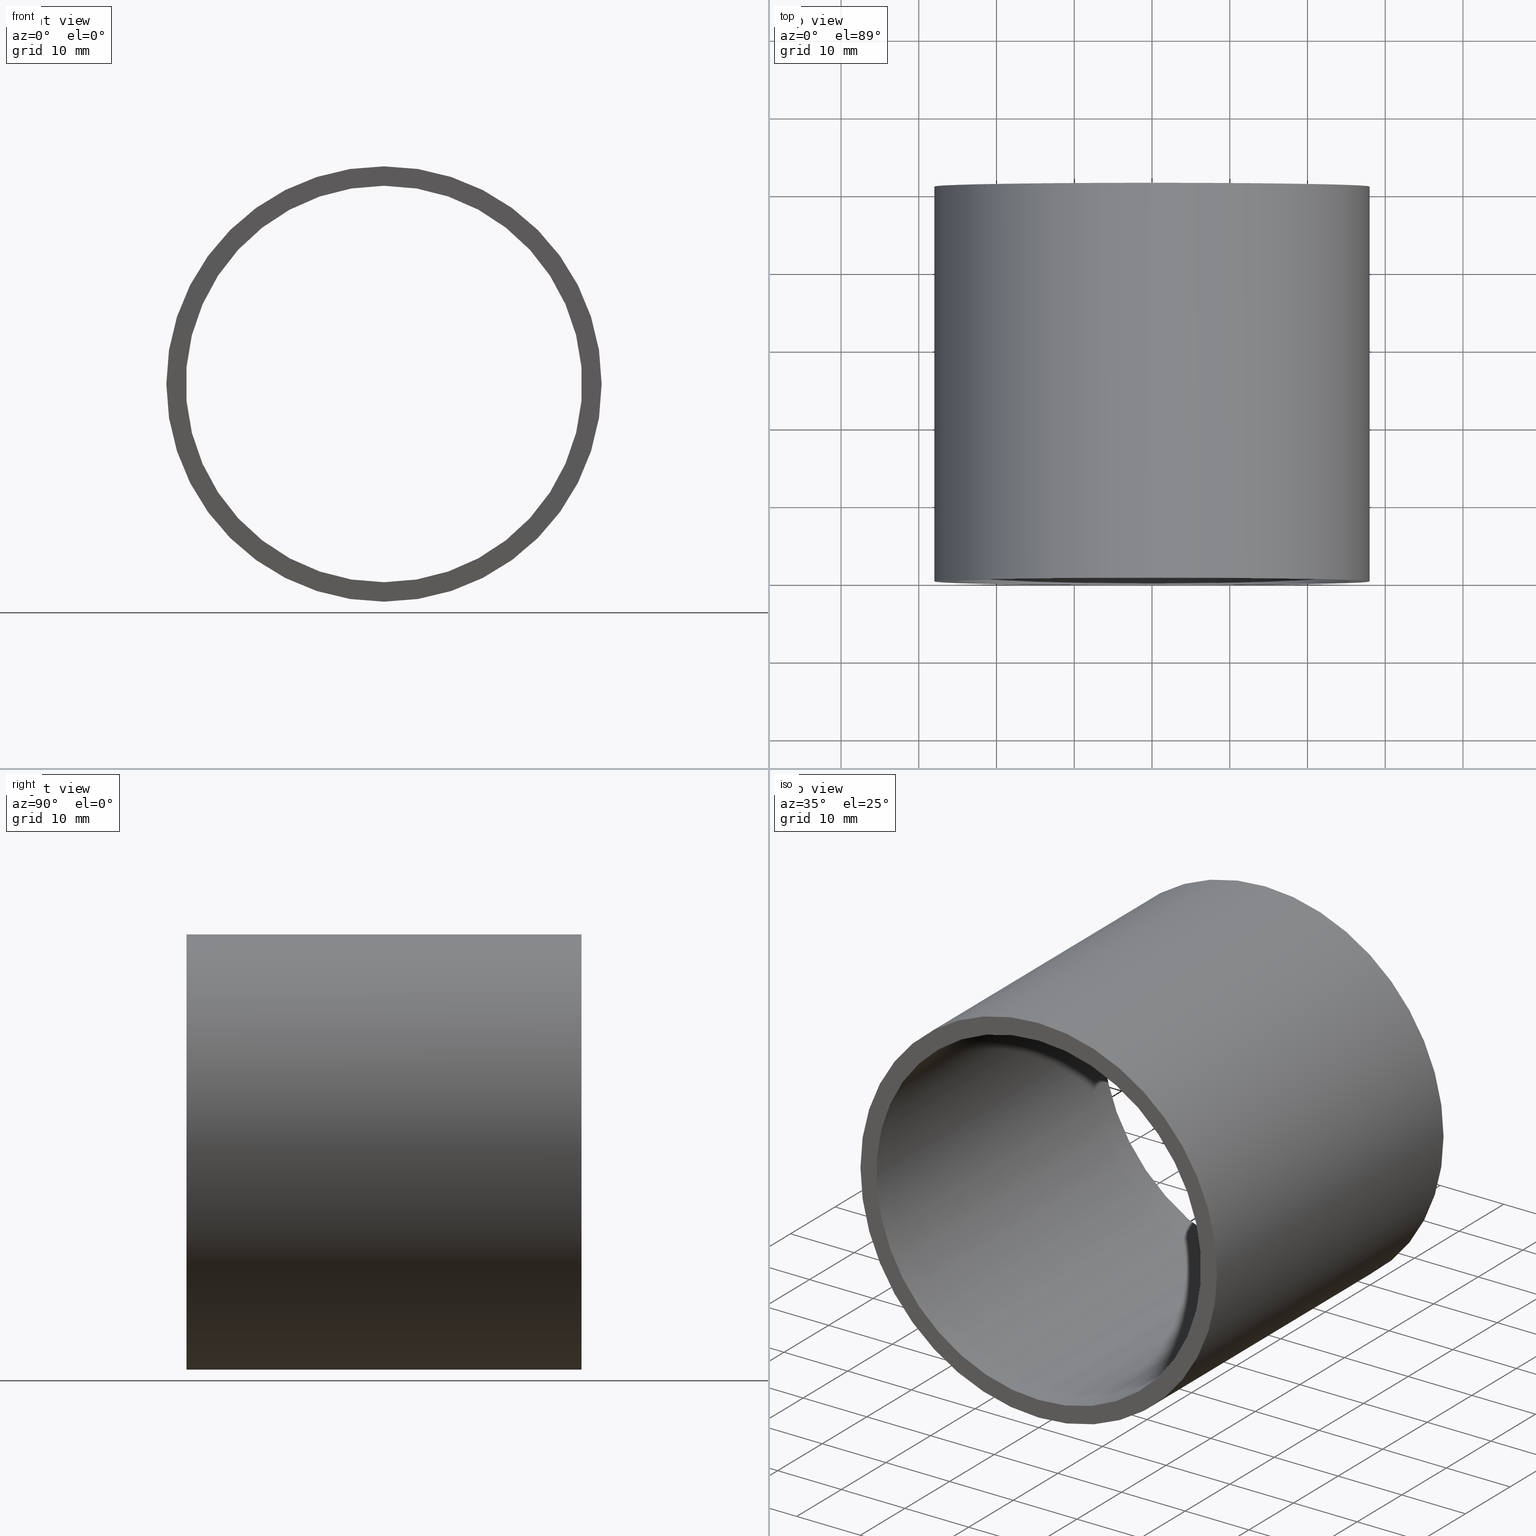
[diagram: canonical four-view strip — front | top / right | iso, engineering-drawing reading convention]
A machine part, canonical four-view strip (front | top / right | iso — engineering-drawing reading convention). The complete STEP part file that produces these views, byte-faithful:
ISO-10303-21;
HEADER;
FILE_DESCRIPTION (( 'STEP AP214' ),
    '1' );
FILE_NAME ('503007.STEP',
    '2019-09-04T06:13:01',
    ( '' ),
    ( '' ),
    'SwSTEP 2.0',
    'SolidWorks 2016',
    '' );
FILE_SCHEMA (( 'AUTOMOTIVE_DESIGN' ));
ENDSEC;

DATA;
#1 = EDGE_LOOP ( 'NONE', ( #199, #37 ) ) ;
#2 = CARTESIAN_POINT ( 'NONE',  ( 3.122849337825752600E-015, -2.775557561562891400E-014, -25.50000000000001400 ) ) ;
#3 = CYLINDRICAL_SURFACE ( 'NONE', #216, 28.00000000000002100 ) ;
#4 =( NAMED_UNIT ( * ) PLANE_ANGLE_UNIT ( ) SI_UNIT ( $, .RADIAN. ) );
#5 = FACE_BOUND ( 'NONE', #223, .T. ) ;
#6 = CARTESIAN_POINT ( 'NONE',  ( 0.0000000000000000000, 50.79999999999998300, 0.0000000000000000000 ) ) ;
#7 = AXIS2_PLACEMENT_3D ( 'NONE', #200, #154, #181 ) ;
#8 = PRESENTATION_LAYER_ASSIGNMENT (  '', '', ( #112 ) ) ;
#9 = PRODUCT_DEFINITION ( 'δ֪', '', #39, #107 ) ;
#10 = VECTOR ( 'NONE', #135, 1000.000000000000000 ) ;
#11 = EDGE_LOOP ( 'NONE', ( #217, #227, #136, #103 ) ) ;
#12 = ORIENTED_EDGE ( 'NONE', *, *, #153, .F. ) ;
#13 = AXIS2_PLACEMENT_3D ( 'NONE', #50, #179, #106 ) ;
#14 = CYLINDRICAL_SURFACE ( 'NONE', #70, 25.50000000000001400 ) ;
#15 = FILL_AREA_STYLE_COLOUR ( '', #31 ) ;
#16 = FILL_AREA_STYLE ('',( #15 ) ) ;
#17 = DIRECTION ( 'NONE',  ( -0.0000000000000000000, 1.000000000000000000, -0.0000000000000000000 ) ) ;
#18 = VERTEX_POINT ( 'NONE', #111 ) ;
#19 = PLANE ( 'NONE',  #36 ) ;
#20 =( NAMED_UNIT ( * ) PLANE_ANGLE_UNIT ( ) SI_UNIT ( $, .RADIAN. ) );
#21 = SURFACE_STYLE_FILL_AREA ( #90 ) ;
#22 = EDGE_LOOP ( 'NONE', ( #186, #139, #84, #189 ) ) ;
#23 = ORIENTED_EDGE ( 'NONE', *, *, #167, .F. ) ;
#24 = APPLICATION_CONTEXT ( 'automotive_design' ) ;
#25 = ADVANCED_FACE ( 'NONE', ( #215 ), #243, .F. ) ;
#26 = CARTESIAN_POINT ( 'NONE',  ( 0.0000000000000000000, 0.0000000000000000000, 0.0000000000000000000 ) ) ;
#27 = AXIS2_PLACEMENT_3D ( 'NONE', #168, #56, #57 ) ;
#28 = DIRECTION ( 'NONE',  ( -0.0000000000000000000, 1.000000000000000000, -0.0000000000000000000 ) ) ;
#29 = ADVANCED_FACE ( 'NONE', ( #83 ), #198, .T. ) ;
#30 = CIRCLE ( 'NONE', #7, 28.00000000000002100 ) ;
#31 = COLOUR_RGB ( '',1.000000000000000000, 1.000000000000000000, 1.000000000000000000 ) ;
#32 = SURFACE_SIDE_STYLE ('',( #145 ) ) ;
#33 = FACE_OUTER_BOUND ( 'NONE', #59, .T. ) ;
#34 =( LENGTH_UNIT ( ) NAMED_UNIT ( * ) SI_UNIT ( .MILLI., .METRE. ) );
#35 = CARTESIAN_POINT ( 'NONE',  ( 0.0000000000000000000, -2.775557561562891400E-014, 28.00000000000002100 ) ) ;
#36 = AXIS2_PLACEMENT_3D ( 'NONE', #224, #242, #225 ) ;
#37 = ORIENTED_EDGE ( 'NONE', *, *, #239, .T. ) ;
#38 = DIRECTION ( 'NONE',  ( 0.0000000000000000000, 0.0000000000000000000, 1.000000000000000000 ) ) ;
#39 = PRODUCT_DEFINITION_FORMATION_WITH_SPECIFIED_SOURCE ( '�κ�', '', #72, .NOT_KNOWN. ) ;
#40 = CLOSED_SHELL ( 'NONE', ( #208, #141, #175, #29, #93, #25 ) ) ;
#41 = DIRECTION ( 'NONE',  ( 0.0000000000000000000, 0.0000000000000000000, 1.000000000000000000 ) ) ;
#42 = EDGE_CURVE ( 'NONE', #203, #163, #94, .T. ) ;
#43 = DIRECTION ( 'NONE',  ( 1.000000000000000000, 0.0000000000000000000, 0.0000000000000000000 ) ) ;
#44 = PRODUCT_CONTEXT ( 'NONE', #24, 'mechanical' ) ;
#45 = AXIS2_PLACEMENT_3D ( 'NONE', #244, #228, #170 ) ;
#46 = LINE ( 'NONE', #87, #10 ) ;
#47 = ORIENTED_EDGE ( 'NONE', *, *, #69, .T. ) ;
#48 = UNCERTAINTY_MEASURE_WITH_UNIT (LENGTH_MEASURE( 1.000000000000000100E-005 ), #121, 'distance_accuracy_value', 'NONE');
#49 = DIRECTION ( 'NONE',  ( 0.0000000000000000000, 0.0000000000000000000, 1.000000000000000000 ) ) ;
#50 = CARTESIAN_POINT ( 'NONE',  ( 0.0000000000000000000, 161.3761669434274500, 0.0000000000000000000 ) ) ;
#51 = FACE_OUTER_BOUND ( 'NONE', #151, .T. ) ;
#52 = DIRECTION ( 'NONE',  ( -0.0000000000000000000, 1.000000000000000000, -0.0000000000000000000 ) ) ;
#53 = STYLED_ITEM ( 'NONE', ( #108 ), #25 ) ;
#54 = DIRECTION ( 'NONE',  ( 0.0000000000000000000, 0.0000000000000000000, 1.000000000000000000 ) ) ;
#55 = PRESENTATION_STYLE_ASSIGNMENT (( #89 ) ) ;
#56 = DIRECTION ( 'NONE',  ( -0.0000000000000000000, 1.000000000000000000, -0.0000000000000000000 ) ) ;
#57 = DIRECTION ( 'NONE',  ( 0.0000000000000000000, 0.0000000000000000000, 1.000000000000000000 ) ) ;
#58 = STYLED_ITEM ( 'NONE', ( #128 ), #208 ) ;
#59 = EDGE_LOOP ( 'NONE', ( #143, #195 ) ) ;
#60 = AXIS2_PLACEMENT_3D ( 'NONE', #130, #17, #41 ) ;
#61 = CARTESIAN_POINT ( 'NONE',  ( 0.0000000000000000000, 161.3761669434274500, 0.0000000000000000000 ) ) ;
#62 = ORIENTED_EDGE ( 'NONE', *, *, #69, .F. ) ;
#63 = CIRCLE ( 'NONE', #104, 28.00000000000002100 ) ;
#64 = PRESENTATION_LAYER_ASSIGNMENT (  '', '', ( #53 ) ) ;
#65 =( GEOMETRIC_REPRESENTATION_CONTEXT ( 3 ) GLOBAL_UNCERTAINTY_ASSIGNED_CONTEXT ( ( #48 ) ) GLOBAL_UNIT_ASSIGNED_CONTEXT ( ( #121, #214, #79 ) ) REPRESENTATION_CONTEXT ( 'NONE', 'WORKASPACE' ) );
#66 = ORIENTED_EDGE ( 'NONE', *, *, #230, .F. ) ;
#67 = FACE_OUTER_BOUND ( 'NONE', #22, .T. ) ;
#68 = DIRECTION ( 'NONE',  ( 0.0000000000000000000, 0.0000000000000000000, 1.000000000000000000 ) ) ;
#69 = EDGE_CURVE ( 'NONE', #178, #109, #102, .T. ) ;
#70 = AXIS2_PLACEMENT_3D ( 'NONE', #61, #28, #99 ) ;
#71 =( NAMED_UNIT ( * ) PLANE_ANGLE_UNIT ( ) SI_UNIT ( $, .RADIAN. ) );
#72 = PRODUCT ( '503007', '503007', '', ( #44 ) ) ;
#73 = FILL_AREA_STYLE ('',( #188 ) ) ;
#74 = EDGE_CURVE ( 'NONE', #123, #96, #155, .T. ) ;
#75 = FILL_AREA_STYLE_COLOUR ( '', #142 ) ;
#76 =( LENGTH_UNIT ( ) NAMED_UNIT ( * ) SI_UNIT ( .MILLI., .METRE. ) );
#77 = ORIENTED_EDGE ( 'NONE', *, *, #74, .T. ) ;
#78 = DIRECTION ( 'NONE',  ( 0.0000000000000000000, 0.0000000000000000000, 1.000000000000000000 ) ) ;
#79 =( NAMED_UNIT ( * ) SI_UNIT ( $, .STERADIAN. ) SOLID_ANGLE_UNIT ( ) );
#80 = CIRCLE ( 'NONE', #27, 28.00000000000002100 ) ;
#81 = UNCERTAINTY_MEASURE_WITH_UNIT (LENGTH_MEASURE( 1.000000000000000100E-005 ), #76, 'distance_accuracy_value', 'NONE');
#82 = CIRCLE ( 'NONE', #169, 25.50000000000001400 ) ;
#83 = FACE_OUTER_BOUND ( 'NONE', #11, .T. ) ;
#84 = ORIENTED_EDGE ( 'NONE', *, *, #167, .T. ) ;
#85 = CARTESIAN_POINT ( 'NONE',  ( 0.0000000000000000000, -2.775557561562891400E-014, 0.0000000000000000000 ) ) ;
#86 = MECHANICAL_DESIGN_GEOMETRIC_PRESENTATION_REPRESENTATION (  '', ( #161 ), #132 ) ;
#87 = CARTESIAN_POINT ( 'NONE',  ( 3.122849337825752600E-015, 161.3761669434274500, -25.50000000000001400 ) ) ;
#88 = CARTESIAN_POINT ( 'NONE',  ( 3.122849337825752200E-015, 50.79999999999998300, -25.50000000000001100 ) ) ;
#89 = SURFACE_STYLE_USAGE ( .BOTH. , #149 ) ;
#90 = FILL_AREA_STYLE ('',( #75 ) ) ;
#91 = VERTEX_POINT ( 'NONE', #35 ) ;
#92 = DIRECTION ( 'NONE',  ( -0.0000000000000000000, 1.000000000000000000, -0.0000000000000000000 ) ) ;
#93 = ADVANCED_FACE ( 'NONE', ( #174, #125 ), #241, .F. ) ;
#94 = LINE ( 'NONE', #147, #146 ) ;
#95 = ORIENTED_EDGE ( 'NONE', *, *, #194, .T. ) ;
#96 = VERTEX_POINT ( 'NONE', #88 ) ;
#97 = FILL_AREA_STYLE ('',( #101 ) ) ;
#98 = ORIENTED_EDGE ( 'NONE', *, *, #105, .T. ) ;
#99 = DIRECTION ( 'NONE',  ( 0.0000000000000000000, 0.0000000000000000000, 1.000000000000000000 ) ) ;
#100 =( NAMED_UNIT ( * ) SI_UNIT ( $, .STERADIAN. ) SOLID_ANGLE_UNIT ( ) );
#101 = FILL_AREA_STYLE_COLOUR ( '', #117 ) ;
#102 = CIRCLE ( 'NONE', #131, 25.50000000000001400 ) ;
#103 = ORIENTED_EDGE ( 'NONE', *, *, #239, .F. ) ;
#104 = AXIS2_PLACEMENT_3D ( 'NONE', #6, #211, #78 ) ;
#105 = EDGE_CURVE ( 'NONE', #91, #203, #80, .T. ) ;
#106 = DIRECTION ( 'NONE',  ( 0.0000000000000000000, 0.0000000000000000000, 1.000000000000000000 ) ) ;
#107 = PRODUCT_DEFINITION_CONTEXT ( 'detailed design', #193, 'design' ) ;
#108 = PRESENTATION_STYLE_ASSIGNMENT (( #197 ) ) ;
#109 = VERTEX_POINT ( 'NONE', #2 ) ;
#110 = DIRECTION ( 'NONE',  ( -0.0000000000000000000, 1.000000000000000000, -0.0000000000000000000 ) ) ;
#111 = CARTESIAN_POINT ( 'NONE',  ( 0.0000000000000000000, 50.79999999999998300, 28.00000000000002100 ) ) ;
#112 = STYLED_ITEM ( 'NONE', ( #55 ), #190 ) ;
#113 = CARTESIAN_POINT ( 'NONE',  ( 0.0000000000000000000, 161.3761669434274500, 25.50000000000001400 ) ) ;
#114 = CARTESIAN_POINT ( 'NONE',  ( 3.429011037612591600E-015, 50.79999999999998300, -28.00000000000002100 ) ) ;
#115 = EDGE_CURVE ( 'NONE', #109, #96, #46, .T. ) ;
#116 = DIRECTION ( 'NONE',  ( 0.0000000000000000000, -1.000000000000000000, 0.0000000000000000000 ) ) ;
#117 = COLOUR_RGB ( '',1.000000000000000000, 1.000000000000000000, 1.000000000000000000 ) ;
#118 = DIRECTION ( 'NONE',  ( 0.0000000000000000000, -0.0000000000000000000, -1.000000000000000000 ) ) ;
#119 =( LENGTH_UNIT ( ) NAMED_UNIT ( * ) SI_UNIT ( .MILLI., .METRE. ) );
#120 = SURFACE_STYLE_USAGE ( .BOTH. , #133 ) ;
#121 =( LENGTH_UNIT ( ) NAMED_UNIT ( * ) SI_UNIT ( .MILLI., .METRE. ) );
#122 = LINE ( 'NONE', #113, #134 ) ;
#123 = VERTEX_POINT ( 'NONE', #138 ) ;
#124 = AXIS2_PLACEMENT_3D ( 'NONE', #171, #226, #38 ) ;
#125 = FACE_OUTER_BOUND ( 'NONE', #1, .T. ) ;
#126 = UNCERTAINTY_MEASURE_WITH_UNIT (LENGTH_MEASURE( 1.000000000000000100E-005 ), #34, 'distance_accuracy_value', 'NONE');
#127 = DIRECTION ( 'NONE',  ( -0.0000000000000000000, 1.000000000000000000, -0.0000000000000000000 ) ) ;
#128 = PRESENTATION_STYLE_ASSIGNMENT (( #120 ) ) ;
#129 = ORIENTED_EDGE ( 'NONE', *, *, #74, .F. ) ;
#130 = CARTESIAN_POINT ( 'NONE',  ( 0.0000000000000000000, -2.775557561562891400E-014, 0.0000000000000000000 ) ) ;
#131 = AXIS2_PLACEMENT_3D ( 'NONE', #85, #127, #49 ) ;
#132 =( GEOMETRIC_REPRESENTATION_CONTEXT ( 3 ) GLOBAL_UNCERTAINTY_ASSIGNED_CONTEXT ( ( #212 ) ) GLOBAL_UNIT_ASSIGNED_CONTEXT ( ( #119, #4, #100 ) ) REPRESENTATION_CONTEXT ( 'NONE', 'WORKASPACE' ) );
#133 = SURFACE_SIDE_STYLE ('',( #21 ) ) ;
#134 = VECTOR ( 'NONE', #92, 1000.000000000000000 ) ;
#135 = DIRECTION ( 'NONE',  ( -0.0000000000000000000, 1.000000000000000000, -0.0000000000000000000 ) ) ;
#136 = ORIENTED_EDGE ( 'NONE', *, *, #230, .T. ) ;
#137 = VECTOR ( 'NONE', #191, 1000.000000000000000 ) ;
#138 = CARTESIAN_POINT ( 'NONE',  ( 0.0000000000000000000, 50.79999999999998300, 25.50000000000001100 ) ) ;
#139 = ORIENTED_EDGE ( 'NONE', *, *, #115, .T. ) ;
#140 = PRODUCT_RELATED_PRODUCT_CATEGORY ( 'part', '', ( #72 ) ) ;
#141 = ADVANCED_FACE ( 'NONE', ( #51 ), #3, .T. ) ;
#142 = COLOUR_RGB ( '',1.000000000000000000, 1.000000000000000000, 1.000000000000000000 ) ;
#143 = ORIENTED_EDGE ( 'NONE', *, *, #105, .F. ) ;
#144 = AXIS2_PLACEMENT_3D ( 'NONE', #238, #110, #68 ) ;
#145 = SURFACE_STYLE_FILL_AREA ( #97 ) ;
#146 = VECTOR ( 'NONE', #52, 1000.000000000000000 ) ;
#147 = CARTESIAN_POINT ( 'NONE',  ( 3.429011037612591600E-015, 161.3761669434274500, -28.00000000000002100 ) ) ;
#148 = EDGE_LOOP ( 'NONE', ( #192, #62, #95, #77 ) ) ;
#149 = SURFACE_SIDE_STYLE ('',( #220 ) ) ;
#150 =( GEOMETRIC_REPRESENTATION_CONTEXT ( 3 ) GLOBAL_UNCERTAINTY_ASSIGNED_CONTEXT ( ( #81 ) ) GLOBAL_UNIT_ASSIGNED_CONTEXT ( ( #76, #20, #204 ) ) REPRESENTATION_CONTEXT ( 'NONE', 'WORKASPACE' ) );
#151 = EDGE_LOOP ( 'NONE', ( #98, #240, #12, #66 ) ) ;
#152 = DIRECTION ( 'NONE',  ( -0.0000000000000000000, 1.000000000000000000, -0.0000000000000000000 ) ) ;
#153 = EDGE_CURVE ( 'NONE', #18, #163, #30, .T. ) ;
#154 = DIRECTION ( 'NONE',  ( -0.0000000000000000000, 1.000000000000000000, -0.0000000000000000000 ) ) ;
#155 = CIRCLE ( 'NONE', #124, 25.50000000000001100 ) ;
#156 = APPLICATION_PROTOCOL_DEFINITION ( 'draft international standard', 'automotive_design', 1998, #193 ) ;
#157 = PRODUCT_DEFINITION_SHAPE ( 'NONE', 'NONE',  #9 ) ;
#158 = SHAPE_DEFINITION_REPRESENTATION ( #157, #162 ) ;
#159 = DIRECTION ( 'NONE',  ( 0.0000000000000000000, 0.0000000000000000000, 1.000000000000000000 ) ) ;
#160 = SURFACE_STYLE_USAGE ( .BOTH. , #32 ) ;
#161 = STYLED_ITEM ( 'NONE', ( #221 ), #162 ) ;
#162 = ADVANCED_BREP_SHAPE_REPRESENTATION ( '503007', ( #190, #219 ), #166 ) ;
#163 = VERTEX_POINT ( 'NONE', #114 ) ;
#164 = PRESENTATION_LAYER_ASSIGNMENT (  '', '', ( #58 ) ) ;
#165 = AXIS2_PLACEMENT_3D ( 'NONE', #196, #116, #118 ) ;
#166 =( GEOMETRIC_REPRESENTATION_CONTEXT ( 3 ) GLOBAL_UNCERTAINTY_ASSIGNED_CONTEXT ( ( #201 ) ) GLOBAL_UNIT_ASSIGNED_CONTEXT ( ( #231, #229, #210 ) ) REPRESENTATION_CONTEXT ( 'NONE', 'WORKASPACE' ) );
#167 = EDGE_CURVE ( 'NONE', #96, #123, #176, .T. ) ;
#168 = CARTESIAN_POINT ( 'NONE',  ( 0.0000000000000000000, -2.775557561562891400E-014, 0.0000000000000000000 ) ) ;
#169 = AXIS2_PLACEMENT_3D ( 'NONE', #202, #152, #183 ) ;
#170 = DIRECTION ( 'NONE',  ( 0.0000000000000000000, 0.0000000000000000000, 1.000000000000000000 ) ) ;
#171 = CARTESIAN_POINT ( 'NONE',  ( 0.0000000000000000000, 50.79999999999998300, 0.0000000000000000000 ) ) ;
#172 = COLOUR_RGB ( '',1.000000000000000000, 1.000000000000000000, 1.000000000000000000 ) ;
#173 = CARTESIAN_POINT ( 'NONE',  ( 0.0000000000000000000, 161.3761669434274500, 28.00000000000002100 ) ) ;
#174 = FACE_BOUND ( 'NONE', #232, .T. ) ;
#175 = ADVANCED_FACE ( 'NONE', ( #33, #5 ), #19, .F. ) ;
#176 = CIRCLE ( 'NONE', #45, 25.50000000000001100 ) ;
#177 = SURFACE_SIDE_STYLE ('',( #235 ) ) ;
#178 = VERTEX_POINT ( 'NONE', #185 ) ;
#179 = DIRECTION ( 'NONE',  ( -0.0000000000000000000, 1.000000000000000000, -0.0000000000000000000 ) ) ;
#180 = EDGE_CURVE ( 'NONE', #109, #178, #82, .T. ) ;
#181 = DIRECTION ( 'NONE',  ( 0.0000000000000000000, 0.0000000000000000000, 1.000000000000000000 ) ) ;
#182 = CARTESIAN_POINT ( 'NONE',  ( 0.0000000000000000000, 161.3761669434274500, 0.0000000000000000000 ) ) ;
#183 = DIRECTION ( 'NONE',  ( 0.0000000000000000000, 0.0000000000000000000, 1.000000000000000000 ) ) ;
#184 = MECHANICAL_DESIGN_GEOMETRIC_PRESENTATION_REPRESENTATION (  '', ( #58 ), #65 ) ;
#185 = CARTESIAN_POINT ( 'NONE',  ( 0.0000000000000000000, -2.775557561562891400E-014, 25.50000000000001400 ) ) ;
#186 = ORIENTED_EDGE ( 'NONE', *, *, #180, .F. ) ;
#187 = EDGE_CURVE ( 'NONE', #203, #91, #237, .T. ) ;
#188 = FILL_AREA_STYLE_COLOUR ( '', #172 ) ;
#189 = ORIENTED_EDGE ( 'NONE', *, *, #194, .F. ) ;
#190 = MANIFOLD_SOLID_BREP ( '��ת1', #40 ) ;
#191 = DIRECTION ( 'NONE',  ( -0.0000000000000000000, 1.000000000000000000, -0.0000000000000000000 ) ) ;
#192 = ORIENTED_EDGE ( 'NONE', *, *, #115, .F. ) ;
#193 = APPLICATION_CONTEXT ( 'automotive_design' ) ;
#194 = EDGE_CURVE ( 'NONE', #178, #123, #122, .T. ) ;
#195 = ORIENTED_EDGE ( 'NONE', *, *, #187, .F. ) ;
#196 = CARTESIAN_POINT ( 'NONE',  ( 25.50000000000001100, 50.79999999999998300, 0.0000000000000000000 ) ) ;
#197 = SURFACE_STYLE_USAGE ( .BOTH. , #177 ) ;
#198 = CYLINDRICAL_SURFACE ( 'NONE', #144, 28.00000000000002100 ) ;
#199 = ORIENTED_EDGE ( 'NONE', *, *, #153, .T. ) ;
#200 = CARTESIAN_POINT ( 'NONE',  ( 0.0000000000000000000, 50.79999999999998300, 0.0000000000000000000 ) ) ;
#201 = UNCERTAINTY_MEASURE_WITH_UNIT (LENGTH_MEASURE( 1.000000000000000100E-005 ), #231, 'distance_accuracy_value', 'NONE');
#202 = CARTESIAN_POINT ( 'NONE',  ( 0.0000000000000000000, -2.775557561562891400E-014, 0.0000000000000000000 ) ) ;
#203 = VERTEX_POINT ( 'NONE', #205 ) ;
#204 =( NAMED_UNIT ( * ) SI_UNIT ( $, .STERADIAN. ) SOLID_ANGLE_UNIT ( ) );
#205 = CARTESIAN_POINT ( 'NONE',  ( 3.429011037612591600E-015, -2.775557561562891400E-014, -28.00000000000002100 ) ) ;
#206 = LINE ( 'NONE', #173, #137 ) ;
#207 =( GEOMETRIC_REPRESENTATION_CONTEXT ( 3 ) GLOBAL_UNCERTAINTY_ASSIGNED_CONTEXT ( ( #126 ) ) GLOBAL_UNIT_ASSIGNED_CONTEXT ( ( #34, #71, #218 ) ) REPRESENTATION_CONTEXT ( 'NONE', 'WORKASPACE' ) );
#208 = ADVANCED_FACE ( 'NONE', ( #67 ), #14, .F. ) ;
#209 = ORIENTED_EDGE ( 'NONE', *, *, #180, .T. ) ;
#210 =( NAMED_UNIT ( * ) SI_UNIT ( $, .STERADIAN. ) SOLID_ANGLE_UNIT ( ) );
#211 = DIRECTION ( 'NONE',  ( -0.0000000000000000000, 1.000000000000000000, -0.0000000000000000000 ) ) ;
#212 = UNCERTAINTY_MEASURE_WITH_UNIT (LENGTH_MEASURE( 1.000000000000000100E-005 ), #119, 'distance_accuracy_value', 'NONE');
#213 = MECHANICAL_DESIGN_GEOMETRIC_PRESENTATION_REPRESENTATION (  '', ( #112 ), #150 ) ;
#214 =( NAMED_UNIT ( * ) PLANE_ANGLE_UNIT ( ) SI_UNIT ( $, .RADIAN. ) );
#215 = FACE_OUTER_BOUND ( 'NONE', #148, .T. ) ;
#216 = AXIS2_PLACEMENT_3D ( 'NONE', #182, #222, #54 ) ;
#217 = ORIENTED_EDGE ( 'NONE', *, *, #42, .F. ) ;
#218 =( NAMED_UNIT ( * ) SI_UNIT ( $, .STERADIAN. ) SOLID_ANGLE_UNIT ( ) );
#219 = AXIS2_PLACEMENT_3D ( 'NONE', #26, #159, #43 ) ;
#220 = SURFACE_STYLE_FILL_AREA ( #73 ) ;
#221 = PRESENTATION_STYLE_ASSIGNMENT (( #160 ) ) ;
#222 = DIRECTION ( 'NONE',  ( -0.0000000000000000000, 1.000000000000000000, -0.0000000000000000000 ) ) ;
#223 = EDGE_LOOP ( 'NONE', ( #47, #209 ) ) ;
#224 = CARTESIAN_POINT ( 'NONE',  ( 25.50000000000001400, -1.390324872067691800E-014, 0.0000000000000000000 ) ) ;
#225 = DIRECTION ( 'NONE',  ( 0.0000000000000000000, 0.0000000000000000000, 1.000000000000000000 ) ) ;
#226 = DIRECTION ( 'NONE',  ( -0.0000000000000000000, 1.000000000000000000, -0.0000000000000000000 ) ) ;
#227 = ORIENTED_EDGE ( 'NONE', *, *, #187, .T. ) ;
#228 = DIRECTION ( 'NONE',  ( -0.0000000000000000000, 1.000000000000000000, -0.0000000000000000000 ) ) ;
#229 =( NAMED_UNIT ( * ) PLANE_ANGLE_UNIT ( ) SI_UNIT ( $, .RADIAN. ) );
#230 = EDGE_CURVE ( 'NONE', #91, #18, #206, .T. ) ;
#231 =( LENGTH_UNIT ( ) NAMED_UNIT ( * ) SI_UNIT ( .MILLI., .METRE. ) );
#232 = EDGE_LOOP ( 'NONE', ( #129, #23 ) ) ;
#233 = APPLICATION_PROTOCOL_DEFINITION ( 'draft international standard', 'automotive_design', 1998, #24 ) ;
#234 = MECHANICAL_DESIGN_GEOMETRIC_PRESENTATION_REPRESENTATION (  '', ( #53 ), #207 ) ;
#235 = SURFACE_STYLE_FILL_AREA ( #16 ) ;
#236 = PRESENTATION_LAYER_ASSIGNMENT (  '', '', ( #161 ) ) ;
#237 = CIRCLE ( 'NONE', #60, 28.00000000000002100 ) ;
#238 = CARTESIAN_POINT ( 'NONE',  ( 0.0000000000000000000, 161.3761669434274500, 0.0000000000000000000 ) ) ;
#239 = EDGE_CURVE ( 'NONE', #163, #18, #63, .T. ) ;
#240 = ORIENTED_EDGE ( 'NONE', *, *, #42, .T. ) ;
#241 = PLANE ( 'NONE',  #165 ) ;
#242 = DIRECTION ( 'NONE',  ( -0.0000000000000000000, 1.000000000000000000, 0.0000000000000000000 ) ) ;
#243 = CYLINDRICAL_SURFACE ( 'NONE', #13, 25.50000000000001400 ) ;
#244 = CARTESIAN_POINT ( 'NONE',  ( 0.0000000000000000000, 50.79999999999998300, 0.0000000000000000000 ) ) ;
ENDSEC;
END-ISO-10303-21;
